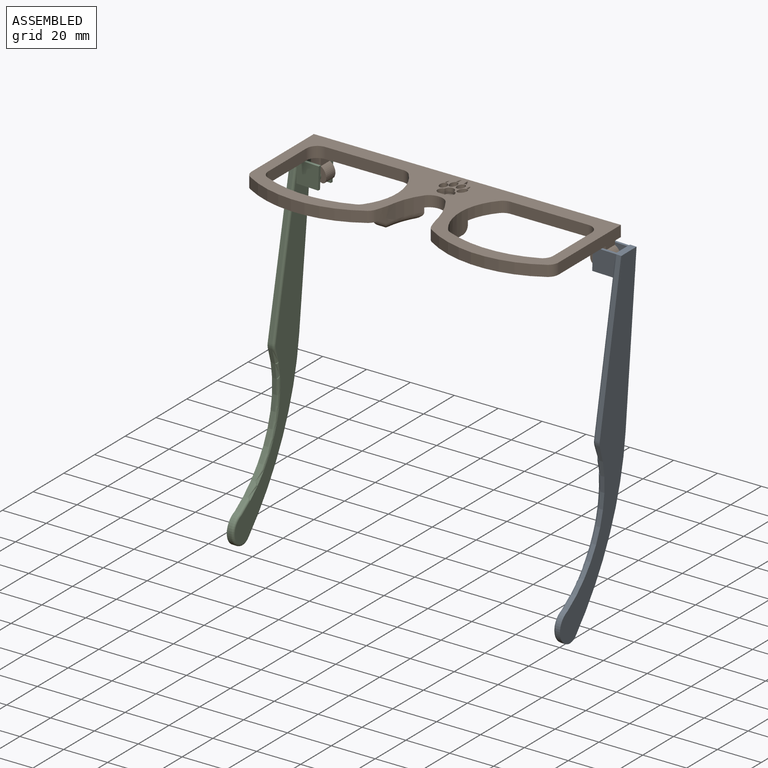
[diagram: assembled view]
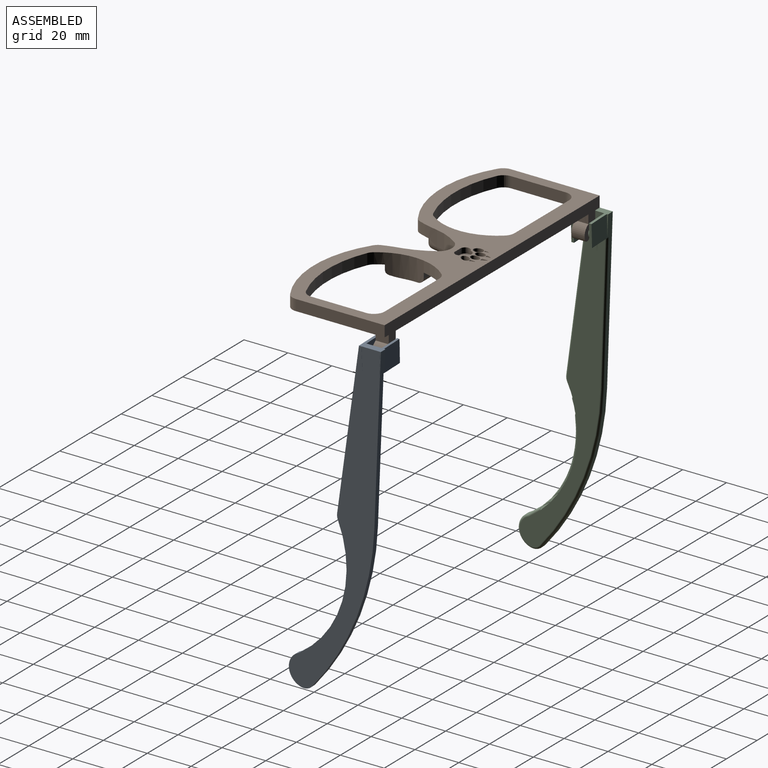
[diagram: assembled view, second angle]
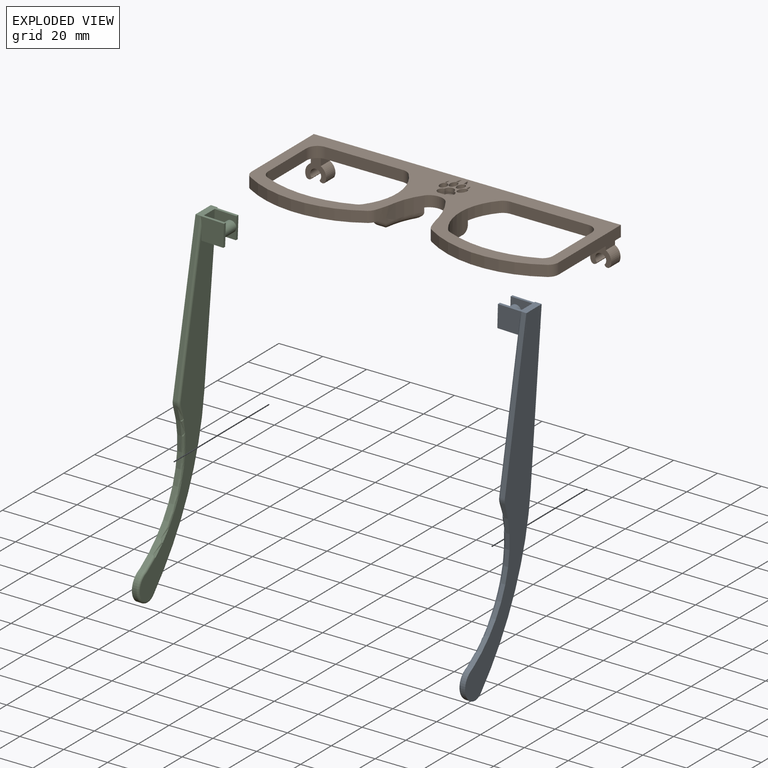
[diagram: exploded view]
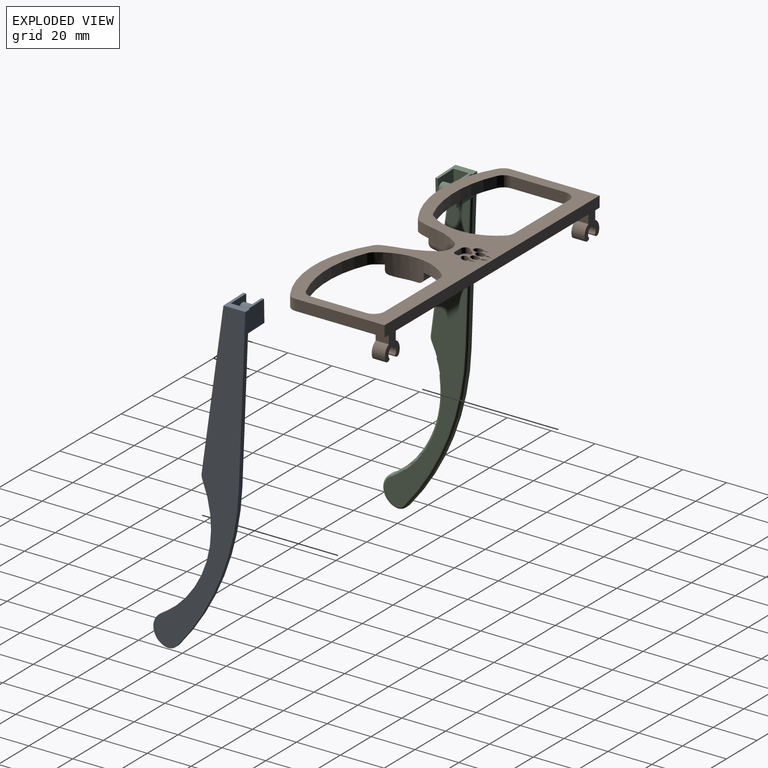
[diagram: exploded view, second angle]
ASSEMBLY  parts=3 mates=2
PART A: 37 faces, bbox 155x51x13 mm
  f0: plane 149.14x42mm, normal (0,0,-1), area 1534mm2, adj f3,f22,f23,f25,f26,f27,f29,f30
  f1: plane 10.01x0.58mm, normal (0,0,-1), area 2.9mm2, adj f3,f9,f21
  f2: plane 1.29x0.04mm, normal (1,0,0), area 0.1mm2, adj f10,f15,f18,f19
  f3: plane 13x10mm, normal (-1,0,0), area 54.2mm2, adj f0,f1,f4,f5,f9,f10,f14,f15
  f4: plane 10.01x0.58mm, normal (0,0,1), area 2.9mm2, adj f3,f9,f14
  f5: plane 72.9x11.29mm, normal (-0.15,-0.99,0), area 147.5mm2, adj f3,f10,f11,f29
  f6: cylinder r=50.09mm len=60.28mm, axis (0,0,-1), area 136.5mm2, adj f10,f11,f13,f31
  f7: cylinder r=7.35mm len=13.77mm, axis (0,0,-1), area 36mm2, adj f10,f12,f13,f33
  f8: cylinder r=123.65mm len=73.53mm, axis (0,0,-1), area 161.5mm2, adj f9,f10,f12,f35
  f9: plane 74.88x4.33mm, normal (0.06,1,0), area 160mm2, adj f1,f3,f4,f8,f10,f23,f36
  f10: plane 150.14x44.01mm, normal (0,0,1), area 1844mm2, adj f2,f3,f5,f6,f7,f8,f9,f11
  f11: cylinder r=5mm len=2.63mm, axis (0,0,-1), area 5.4mm2, adj f5,f6,f10,f30
  f12: cylinder r=5mm len=5.09mm, axis (0,0,-1), area 11.2mm2, adj f7,f8,f10,f34
  f13: cylinder r=5mm len=2mm, axis (0,0,-1), area 1.6mm2, adj f6,f7,f10,f32
  f14: plane 10.01x0.04mm, normal (0,1,0), area 0.4mm2, adj f3,f4,f16,f20
  f15: plane 10.01x0.04mm, normal (0,-1,0), area 0.4mm2, adj f2,f3,f10,f19
  f16: plane 1.13x0.04mm, normal (1,0,0), area 0mm2, adj f10,f14,f17,f20
  f17: plane 10.01x0.04mm, normal (0,-1,0), area 0.4mm2, adj f3,f10,f16,f20
  f18: plane 10.01x0.04mm, normal (0,1,0), area 0.4mm2, adj f2,f3,f10,f19
  f19: plane 10.01x1.29mm, normal (0,0,1), area 12.9mm2, adj f2,f3,f15,f18
  f20: plane 10.01x1.13mm, normal (0,0,1), area 11.3mm2, adj f3,f14,f16,f17
  f21: plane 10.01x9.96mm, normal (0,1,0), area 99.7mm2, adj f1,f3,f23,f24
  f22: plane 10.01x9.96mm, normal (0,-1,0), area 80.1mm2, adj f0,f3,f23,f24,f28
  f23: plane 10.96x1.13mm, normal (1,0,0), area 11.5mm2, adj f0,f9,f21,f22,f24,f36
  f24: plane 10.01x9.42mm, normal (0,0,-1), area 25.8mm2, adj f3,f21,f22,f23,f25,f26,f27,f28
  f25: plane 10.01x9.96mm, normal (0,1,0), area 80.1mm2, adj f0,f3,f24,f27,f28
  f26: plane 10.96x10.01mm, normal (0,-1,0), area 101.1mm2, adj f0,f3,f24,f27,f29
  f27: plane 9.96x1.29mm, normal (1,0,0), area 12.8mm2, adj f0,f24,f25,f26
  f28: cylinder r=2.5mm len=7mm, axis (0,-1,0), area 108.4mm2, adj f22,f24,f25
  f29: cylinder r=1mm len=73.05mm, axis (0.99,-0.15,0), area 112.2mm2, adj f0,f5,f26,f30
  f30: torus R=4mm, axis (0,0,1), area 3.9mm2, adj f0,f11,f29,f31
  f31: torus R=51.09mm, axis (0,0,1), area 108mm2, adj f0,f6,f30,f32
  f32: torus R=6mm, axis (0,0,1), area 1.3mm2, adj f0,f13,f31,f33
  f33: torus R=6.35mm, axis (0,0,1), area 26.8mm2, adj f0,f7,f32,f34
  f34: torus R=4mm, axis (0,0,1), area 8.2mm2, adj f0,f12,f33,f35
  f35: torus R=122.65mm, axis (0,0,1), area 126.4mm2, adj f0,f8,f34,f36
  f36: cylinder r=1mm len=64.92mm, axis (-1,0.06,0), area 102mm2, adj f0,f9,f23,f35
PART B: 105 faces, bbox 140x52x15.9 mm
  f0: plane 140x52.04mm, normal (0,0,-1), area 2442.8mm2, adj f1,f3,f7,f9,f15,f17,f20,f21
  f1: cylinder r=50.26mm len=9.2mm, axis (0,0,1), area 56.7mm2, adj f0,f2,f66,f69,f82,f92
  f2: plane 140x52.04mm, normal (0,0,1), area 2616.2mm2, adj f1,f3,f20,f21,f22,f25,f26,f27
  f3: cylinder r=50.26mm len=7.63mm, axis (0,0,1), area 45.4mm2, adj f0,f2,f65,f67,f85,f98
  f4: cylinder r=2.5mm len=6mm, axis (0,1,0), area 71.7mm2, adj f10,f11,f20,f24
  f5: cylinder r=4.83mm len=6.11mm, axis (0,1,0), area 42.8mm2, adj f6,f10,f20,f24
  f6: plane 6x0.05mm, normal (0,0,-1), area 0.3mm2, adj f5,f7,f20,f24
  f7: plane 6x3.89mm, normal (1,0,0), area 23.4mm2, adj f0,f6,f20,f24
  f8: cylinder r=4.83mm len=6.11mm, axis (0,1,0), area 42.8mm2, adj f9,f11,f20,f24
  f9: plane 6x3.89mm, normal (-1,0,0), area 23.4mm2, adj f0,f8,f20,f24
  f10: cylinder r=1.5mm len=6mm, axis (0,1,0), area 21.2mm2, adj f4,f5,f20,f24
  f11: cylinder r=1.5mm len=6mm, axis (0,1,0), area 21.2mm2, adj f4,f8,f20,f24
  f12: cylinder r=2.5mm len=6mm, axis (0,1,0), area 71mm2, adj f18,f19,f20,f23
  f13: cylinder r=4.78mm len=6.01mm, axis (0,1,0), area 42.2mm2, adj f14,f19,f20,f23
  f14: plane 6x0.11mm, normal (0,0,-1), area 0.6mm2, adj f13,f15,f20,f23
  f15: plane 6x3.99mm, normal (1,0,0), area 23.9mm2, adj f0,f14,f20,f23
  f16: cylinder r=4.78mm len=6.01mm, axis (0,1,0), area 42.2mm2, adj f17,f18,f20,f23
  f17: plane 6x3.99mm, normal (-1,0,0), area 23.9mm2, adj f0,f16,f20,f23
  f18: cylinder r=1.5mm len=6mm, axis (0,1,0), area 19.9mm2, adj f12,f16,f20,f23
  f19: cylinder r=1.5mm len=6mm, axis (0,1,0), area 19.9mm2, adj f12,f13,f20,f23
  f20: plane 140x15.92mm, normal (0,1,0), area 809.9mm2, adj f0,f2,f4,f5,f6,f7,f8,f9
  f21: plane 40.51x5mm, normal (-1,0,0), area 202.5mm2, adj f0,f2,f20,f70
  f22: plane 40.51x5mm, normal (1,0,0), area 202.5mm2, adj f0,f2,f20,f68
  f23: plane 10.83x9.56mm, normal (0,-1,0), area 54.3mm2, adj f0,f12,f13,f14,f15,f16,f17,f18
  f24: plane 10.92x9.67mm, normal (0,-1,0), area 55.6mm2, adj f0,f4,f5,f6,f7,f8,f9,f10
  f25: cylinder r=2.24mm len=4.27mm, axis (0,0,1), area 14.2mm2, adj f2,f26,f28,f29
  f26: cylinder r=2.16mm len=4.31mm, axis (0,0,1), area 16.6mm2, adj f2,f25,f27,f29
  f27: cylinder r=2.17mm len=4.27mm, axis (0,0,1), area 15.3mm2, adj f2,f26,f28,f29
  f28: plane 4.24x2.5mm, normal (0,1,0), area 10.6mm2, adj f2,f25,f27,f29
  f29: plane 7.66x6.35mm, normal (0,0,1), area 36mm2, adj f25,f26,f27,f28
  f30: cylinder r=0.96mm len=2.5mm, axis (0,0,1), area 2.7mm2, adj f2,f31,f33,f34
  f31: cylinder r=5.16mm len=2.5mm, axis (0,0,1), area 5.5mm2, adj f2,f30,f32,f34
  f32: cylinder r=0.18mm len=2.5mm, axis (0,0,1), area 1.4mm2, adj f2,f31,f33,f34
  f33: cylinder r=6.23mm len=2.5mm, axis (0,0,1), area 4.8mm2, adj f2,f30,f32,f34
  f34: plane 2.28x1.01mm, normal (0,0,1), area 1.4mm2, adj f30,f31,f32,f33
  f35: cylinder r=4.12mm len=2.5mm, axis (0,0,1), area 6.7mm2, adj f2,f36,f38,f39
  f36: cylinder r=0.15mm len=2.5mm, axis (0,0,1), area 1mm2, adj f2,f35,f37,f39
  f37: cylinder r=8.79mm len=2.5mm, axis (0,0,1), area 6mm2, adj f2,f36,f38,f39
  f38: cylinder r=1.15mm len=2.5mm, axis (0,0,1), area 3.2mm2, adj f2,f35,f37,f39
  f39: plane 2.6x1.33mm, normal (0,0,1), area 2mm2, adj f35,f36,f37,f38
  f40: cylinder r=0.12mm len=2.5mm, axis (0,0,1), area 1.1mm2, adj f2,f41,f43,f44
  f41: cylinder r=3.89mm len=2.5mm, axis (0,0,1), area 5mm2, adj f2,f40,f42,f44
  f42: cylinder r=0.96mm len=2.5mm, axis (0,0,1), area 1.8mm2, adj f2,f41,f43,f44
  f43: cylinder r=4.89mm len=2.5mm, axis (0,0,1), area 4.5mm2, adj f2,f40,f42,f44
  f44: plane 2.08x0.73mm, normal (0,0,1), area 0.9mm2, adj f40,f41,f42,f43
  f45: cylinder r=7.07mm len=2.5mm, axis (0,0,1), area 5.1mm2, adj f2,f46,f48,f49
  f46: cylinder r=0.16mm len=2.5mm, axis (0,0,1), area 1mm2, adj f2,f45,f47,f49
  f47: cylinder r=3.58mm len=2.5mm, axis (0,0,1), area 6mm2, adj f2,f46,f48,f49
  f48: cylinder r=0.92mm len=2.5mm, axis (0,0,1), area 2.7mm2, adj f2,f45,f47,f49
  f49: plane 2.28x1.03mm, normal (0,0,1), area 1.5mm2, adj f45,f46,f47,f48
  f50: extruded ~4.41x3.31mm, area 30.5mm2, adj f2,f51
  f51: plane 4.42x3.31mm, normal (0,0,1), area 11.4mm2, adj f50
  f52: extruded ~4.35x3.42mm, area 30.5mm2, adj f2,f53
  f53: plane 4.37x3.42mm, normal (0,0,1), area 11.2mm2, adj f52
  f54: extruded ~4.62x3.08mm, area 30.5mm2, adj f2,f55
  f55: plane 4.62x3.08mm, normal (0,0,1), area 11.2mm2, adj f54
  f56: extruded ~4.4x3.12mm, area 29.8mm2, adj f2,f57
  f57: plane 4.42x3.12mm, normal (0,0,1), area 10.7mm2, adj f56
  f58: cylinder r=50mm len=52.92mm, axis (0,0,1), area 278.9mm2, adj f0,f2,f67,f68
  f59: cylinder r=50mm len=52.88mm, axis (0,0,1), area 278.6mm2, adj f0,f2,f69,f70
  f60: cylinder r=30mm len=11.47mm, axis (0,0,1), area 88.6mm2, adj f2,f63,f66,f81,f89
  f61: cylinder r=6.37mm len=7.48mm, axis (0,0,1), area 40mm2, adj f0,f2,f63,f64
  f62: cylinder r=41.89mm len=12.9mm, axis (0,0,1), area 99.4mm2, adj f2,f64,f65,f84,f94
  f63: cylinder r=5mm len=5mm, axis (0,0,-1), area 6.6mm2, adj f0,f2,f60,f61
  f64: cylinder r=5mm len=5mm, axis (0,0,-1), area 10mm2, adj f0,f2,f61,f62
  f65: cylinder r=5mm len=7mm, axis (0,0,1), area 1.9mm2, adj f2,f3,f62,f96
  f66: cylinder r=5mm len=7mm, axis (0,0,1), area 1.5mm2, adj f1,f2,f60,f91
  f67: cylinder r=5mm len=5mm, axis (0,0,1), area 16.1mm2, adj f0,f2,f3,f58
  f68: cylinder r=5mm len=5mm, axis (0,0,1), area 25.6mm2, adj f0,f2,f22,f58
  f69: cylinder r=5mm len=5mm, axis (0,0,1), area 16.2mm2, adj f0,f1,f2,f59
  f70: cylinder r=5mm len=5mm, axis (0,0,1), area 25.6mm2, adj f0,f2,f21,f59
  f71: cylinder r=50mm len=40.64mm, axis (0,0,1), area 209.3mm2, adj f0,f2,f77,f104
  f72: plane 24.91x5mm, normal (-1,0,0), area 124.6mm2, adj f0,f2,f77,f78
  f73: plane 35.54x5mm, normal (0,-1,0), area 177.7mm2, adj f0,f2,f78,f103
  f74: cylinder r=50mm len=40.6mm, axis (0,0,1), area 209mm2, adj f0,f2,f80,f101
  f75: plane 35.5x5mm, normal (0,-1,0), area 177.5mm2, adj f0,f2,f79,f102
  f76: plane 24.91x5mm, normal (1,0,0), area 124.6mm2, adj f0,f2,f79,f80
  f77: cylinder r=5mm len=5mm, axis (0,0,1), area 28.5mm2, adj f0,f2,f71,f72
  f78: cylinder r=5mm len=5mm, axis (0,0,1), area 39.3mm2, adj f0,f2,f72,f73
  f79: cylinder r=5mm len=5mm, axis (0,0,1), area 39.3mm2, adj f0,f2,f75,f76
  f80: cylinder r=5mm len=5mm, axis (0,0,1), area 28.5mm2, adj f0,f2,f74,f76
  f81: plane 9.72x2mm, normal (0,1,0), area 19.4mm2, adj f0,f60,f87,f100
  f82: plane 6.07x2mm, normal (0,-1,0), area 12.1mm2, adj f0,f1,f90,f100
  f83: plane 10.06x3.99mm, normal (0,0,-1), area 21.4mm2, adj f87,f88,f89,f90,f91,f92
  f84: plane 10.08x2mm, normal (-0.01,1,0), area 20.2mm2, adj f0,f62,f93,f99
  f85: plane 6.07x2mm, normal (0,-1,0), area 12.1mm2, adj f0,f3,f97,f99
  f86: plane 10.04x4.47mm, normal (0,0,-1), area 24.2mm2, adj f93,f94,f95,f96,f97,f98
  f87: cylinder r=3mm len=9.72mm, axis (-1,0,0), area 35.6mm2, adj f81,f83,f88,f89,f100
  f88: cylinder r=3mm len=12.82mm, axis (0,-1,0), area 6.9mm2, adj f83,f87,f90,f100
  f89: torus R=33mm, axis (0,0,-1), area 52.1mm2, adj f60,f83,f87,f91
  f90: cylinder r=3mm len=6.07mm, axis (1,0,0), area 19.9mm2, adj f82,f83,f88,f92,f100
  f91: torus R=8mm, axis (0,0,-1), area 1.3mm2, adj f66,f83,f89,f92
  f92: torus R=47.26mm, axis (0,0,-1), area 16.7mm2, adj f1,f83,f90,f91
  f93: cylinder r=3mm len=10.11mm, axis (-1,-0.01,0), area 37.6mm2, adj f84,f86,f94,f95,f99
  f94: torus R=44.89mm, axis (0,0,-1), area 59.4mm2, adj f62,f86,f93,f96
  f95: cylinder r=3mm len=12.8mm, axis (0,1,0), area 6.8mm2, adj f86,f93,f97,f99
  f96: torus R=8mm, axis (0,0,-1), area 1.5mm2, adj f65,f86,f94,f98
  f97: cylinder r=3mm len=6.07mm, axis (1,0,0), area 19.9mm2, adj f85,f86,f95,f98,f99
  f98: torus R=47.26mm, axis (0,0,-1), area 9.3mm2, adj f3,f86,f96,f97
  f99: cylinder r=25mm len=31.73mm, axis (0,0,1), area 248.6mm2, adj f0,f2,f84,f85,f93,f95,f97,f103
  f100: cylinder r=25mm len=31.72mm, axis (0,0,1), area 248.7mm2, adj f0,f2,f81,f82,f87,f88,f90,f101
  f101: cylinder r=5mm len=5mm, axis (0,0,1), area 13mm2, adj f0,f2,f74,f100
  f102: cylinder r=5mm len=5mm, axis (0,0,1), area 21mm2, adj f0,f2,f75,f100
  f103: cylinder r=5mm len=5mm, axis (0,0,1), area 21mm2, adj f0,f2,f73,f99
  f104: cylinder r=5mm len=5mm, axis (0,0,-1), area 12.9mm2, adj f0,f2,f71,f99
PART C: 28 faces, bbox 155x51x13 mm
  f0: plane 11x1.19mm, normal (1,0,0), area 12.2mm2, adj f7,f8,f13,f16,f18,f20
  f1: plane 13x10mm, normal (-1,0,0), area 54.2mm2, adj f2,f3,f7,f8,f9,f13,f14,f16
  f2: plane 10.02x0.58mm, normal (0,0,1), area 2.9mm2, adj f1,f7,f13
  f3: plane 72.9x11.29mm, normal (-0.15,-0.99,0), area 147.5mm2, adj f1,f9,f10,f21
  f4: cylinder r=50.09mm len=60.28mm, axis (0,0,-1), area 136.5mm2, adj f9,f10,f12,f25
  f5: cylinder r=7.35mm len=13.77mm, axis (0,0,-1), area 36mm2, adj f9,f11,f12,f26
  f6: cylinder r=123.65mm len=73.53mm, axis (0,0,-1), area 161.5mm2, adj f7,f9,f11,f22
  f7: plane 74.88x4.33mm, normal (0.06,1,0), area 160mm2, adj f0,f1,f2,f6,f9,f20
  f8: plane 149.14x42mm, normal (0,0,1), area 1534mm2, adj f0,f1,f14,f15,f17,f18,f20,f21
  f9: plane 150.14x44.58mm, normal (0,0,-1), area 1871.1mm2, adj f1,f3,f4,f5,f6,f7,f10,f11
  f10: cylinder r=5mm len=2.63mm, axis (0,0,-1), area 5.4mm2, adj f3,f4,f9,f23
  f11: cylinder r=5mm len=5.09mm, axis (0,0,-1), area 11.2mm2, adj f5,f6,f9,f24
  f12: cylinder r=5mm len=2mm, axis (0,0,-1), area 1.6mm2, adj f4,f5,f9,f27
  f13: plane 10.02x10mm, normal (0,1,0), area 100.2mm2, adj f0,f1,f2,f16
  f14: plane 11x10.02mm, normal (0,-1,0), area 101.6mm2, adj f1,f8,f15,f16,f21
  f15: plane 10x1.23mm, normal (1,0,0), area 12.3mm2, adj f8,f14,f16,f17
  f16: plane 10.02x9.42mm, normal (0,0,1), area 25.7mm2, adj f0,f1,f13,f14,f15,f17,f18,f19
  f17: plane 10.02x10mm, normal (0,1,0), area 80.6mm2, adj f1,f8,f15,f16,f19
  f18: plane 10.02x10mm, normal (0,-1,0), area 80.6mm2, adj f0,f1,f8,f16,f19
  f19: cylinder r=2.5mm len=7mm, axis (0,-1,0), area 108.5mm2, adj f16,f17,f18
  f20: cylinder r=1mm len=64.91mm, axis (1,-0.06,0), area 102mm2, adj f0,f7,f8,f22
  f21: cylinder r=1mm len=73.05mm, axis (-0.99,0.15,0), area 112.2mm2, adj f3,f8,f14,f23
  f22: torus R=122.65mm, axis (0,0,1), area 126.4mm2, adj f6,f8,f20,f24
  f23: torus R=4mm, axis (0,0,1), area 3.9mm2, adj f8,f10,f21,f25
  f24: torus R=4mm, axis (0,0,1), area 8.2mm2, adj f8,f11,f22,f26
  f25: torus R=51.09mm, axis (0,0,1), area 108mm2, adj f4,f8,f23,f27
  f26: torus R=6.35mm, axis (0,0,1), area 26.8mm2, adj f5,f8,f24,f27
  f27: torus R=6mm, axis (0,0,1), area 1.3mm2, adj f8,f12,f25,f26
PLACE A rot(axis=(0,1,0),91.5deg) t=(125.06,74.56,-30.82)mm
PLACE B t=(118.27,29.96,18.62)mm fixed
PLACE C rot(axis=(0,1,0),91.9deg) t=(-23.17,74.62,-30.51)mm
MATE revolute A.f28 <-> B.f4  axis (0,-1,0) through (118.67,51.77,10.44)mm
MATE revolute C.f19 <-> B.f12  axis (0,-1,0) through (-11.29,51.77,10.4)mm
